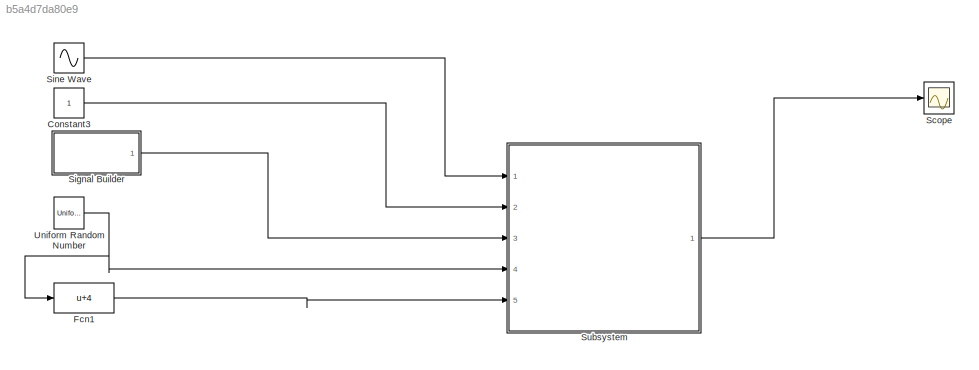
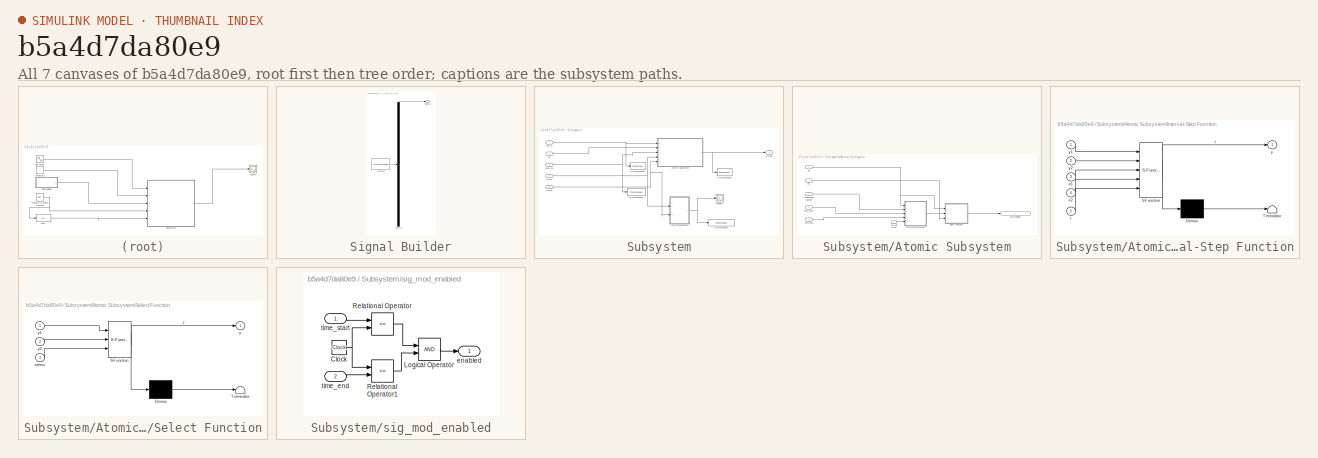
[diagram: thumbnail index - all 7 canvases of the model, root first then tree order]
MODEL slx_b5a4d7da80e9
KIND model
CONFIG AbsTol = auto
CONFIG EnableMultiTasking = off
CONFIG FixedStep = auto
CONFIG MaxStep = auto
CONFIG MinStep = auto
CONFIG RelTol = 1e-3
CONFIG SampleTimeConstraint = Unconstrained
CONFIG Solver = VariableStepAuto
CONFIG SolverName = VariableStepAuto
CONFIG StartTime = 0.0
CONFIG StopTime = 10.0
BLOCK [Constant] Constant3
BLOCK [Fcn] Fcn1
  Expr = u+4
BLOCK [Scope] Scope
  Floating = off
  NumInputPorts = 1
  Ports = [1]
  ScopeSpecificationString = Simulink.scopes.TimeScopeBlockCfg('CurrentConfiguration', extmgr.ConfigurationSet(extmgr.Configuration('Core','General UI',true),extmgr.Configuration('Core','Source UI',true),extmgr.Configuration('Sources','WiredSimulink',true),extmgr.Configuration('Visuals','Time Domain',true,'SerializedDisplays',{struct('MinYLimReal','-1.29138','MaxYLimReal','1.81015','YLabelReal','','MinYLimMag','0.00000','MaxY...<+1384ch>
BLOCK [SubSystem] Signal Builder
  ClipboardFcn = sigbuilder_block('clipboard');
  CloseFcn = sigbuilder_block('close');
  ContinueFcn = sigbuilder_block('continue');
  CopyFcn = sigbuilder_block('copy');
  DeleteFcn = sigbuilder_block('delete');
  LoadFcn = sigbuilder_block('load');
  MaskHideContents = on
  ModelCloseFcn = sigbuilder_block('modelClose');
  NameChangeFcn = sigbuilder_block('namechange');
  OpenFcn = sigbuilder_block('open',[152 61.5 550.5 362.5 ]);
  PauseFcn = sigbuilder_block('pause');
  Ports = [0, 1]
  PreSaveFcn = sigbuilder_block('preSave');
  RequestExecContextInheritance = off
  StartFcn = sigbuilder_block('start');
  StopFcn = sigbuilder_block('stop');
  Tag = STV Subsys
BLOCK [Demux] Signal Builder/Demux
  Outputs = 1
  Ports = [1, 1]
  Tag = STV Demux
BLOCK [FromWorkspace] Signal Builder/FromWs
  SampleTime = 0
  Tag = STV FromWs
  VariableName = tuvar
  ZeroCross = on
BLOCK [Outport] Signal Builder/Signal 1
  IconDisplay = Port number
  Tag = STV Outport
BLOCK [Sin] Sine Wave
  Ports = [0, 1]
  SampleTime = 0
BLOCK [SubSystem] Subsystem
  Ports = [5, 1]
  RequestExecContextInheritance = off
BLOCK [SubSystem] Subsystem/Atomic Subsystem
  Ports = [5, 1]
  RequestExecContextInheritance = off
  TreatAsAtomicUnit = on
BLOCK [Clock] Subsystem/Atomic Subsystem/Clock
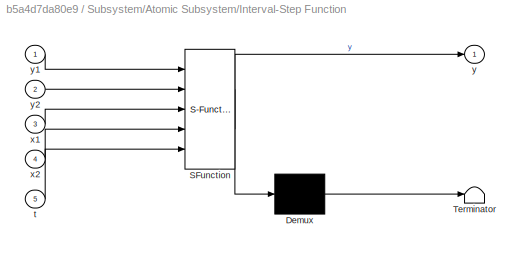
BLOCK [SubSystem] Subsystem/Atomic Subsystem/Interval-Step Function
  ErrorFcn = Stateflow.Translate.translate
  PermitHierarchicalResolution = ExplicitOnly
  Ports = [5, 1]
  RequestExecContextInheritance = off
  SFBlockType = MATLAB Function
  TreatAsAtomicUnit = on
BLOCK [Demux] Subsystem/Atomic Subsystem/Interval-Step Function/ Demux 
  Outputs = 1
  Ports = [1, 1]
BLOCK [S-Function] Subsystem/Atomic Subsystem/Interval-Step Function/ SFunction 
  EnableBusSupport = on
  FunctionName = sf_sfun
  PortCounts = [5 2]
  Ports = [5, 2]
  SFcnIsStateOwnerBlock = off
  SFunctionDeploymentMode = off
  Tag = Stateflow S-Function sig_mod_block_3 1
BLOCK [Terminator] Subsystem/Atomic Subsystem/Interval-Step Function/ Terminator 
BLOCK [Inport] Subsystem/Atomic Subsystem/Interval-Step Function/t
  IconDisplay = Port number
  Port = 5
BLOCK [Inport] Subsystem/Atomic Subsystem/Interval-Step Function/x1
  IconDisplay = Port number
  Port = 3
BLOCK [Inport] Subsystem/Atomic Subsystem/Interval-Step Function/x2
  IconDisplay = Port number
  Port = 4
BLOCK [Outport] Subsystem/Atomic Subsystem/Interval-Step Function/y
  IconDisplay = Port number
BLOCK [Inport] Subsystem/Atomic Subsystem/Interval-Step Function/y1
  IconDisplay = Port number
BLOCK [Inport] Subsystem/Atomic Subsystem/Interval-Step Function/y2
  IconDisplay = Port number
  Port = 2
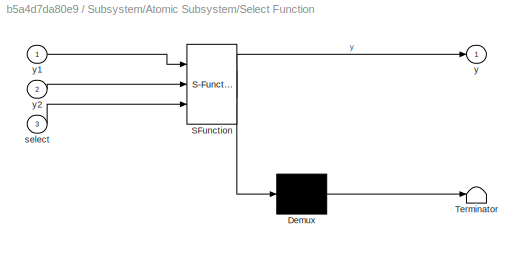
BLOCK [SubSystem] Subsystem/Atomic Subsystem/Select Function
  ErrorFcn = Stateflow.Translate.translate
  PermitHierarchicalResolution = ExplicitOnly
  Ports = [3, 1]
  RequestExecContextInheritance = off
  SFBlockType = MATLAB Function
  TreatAsAtomicUnit = on
BLOCK [Demux] Subsystem/Atomic Subsystem/Select Function/ Demux 
  Outputs = 1
  Ports = [1, 1]
BLOCK [S-Function] Subsystem/Atomic Subsystem/Select Function/ SFunction 
  EnableBusSupport = on
  FunctionName = sf_sfun
  PortCounts = [3 2]
  Ports = [3, 2]
  SFcnIsStateOwnerBlock = off
  SFunctionDeploymentMode = off
  Tag = Stateflow S-Function sig_mod_block_3 4
BLOCK [Terminator] Subsystem/Atomic Subsystem/Select Function/ Terminator 
BLOCK [Inport] Subsystem/Atomic Subsystem/Select Function/select
  IconDisplay = Port number
  Port = 3
BLOCK [Outport] Subsystem/Atomic Subsystem/Select Function/y
  IconDisplay = Port number
BLOCK [Inport] Subsystem/Atomic Subsystem/Select Function/y1
  IconDisplay = Port number
BLOCK [Inport] Subsystem/Atomic Subsystem/Select Function/y2
  IconDisplay = Port number
  Port = 2
BLOCK [Inport] Subsystem/Atomic Subsystem/en
  IconDisplay = Port number
  Port = 2
BLOCK [Inport] Subsystem/Atomic Subsystem/modification function
  IconDisplay = Port number
  Port = 3
BLOCK [Inport] Subsystem/Atomic Subsystem/sig
  IconDisplay = Port number
BLOCK [Outport] Subsystem/Atomic Subsystem/sig_modified
  IconDisplay = Port number
BLOCK [Inport] Subsystem/Atomic Subsystem/time_end
  IconDisplay = Port number
  Port = 5
BLOCK [Inport] Subsystem/Atomic Subsystem/time_start
  IconDisplay = Port number
  Port = 4
BLOCK [Scope] Subsystem/Scope1
  Floating = off
  NumInputPorts = 1
  Ports = [1]
  ScopeSpecificationString = Simulink.scopes.TimeScopeBlockCfg('CurrentConfiguration', extmgr.ConfigurationSet(extmgr.Configuration('Core','General UI',true),extmgr.Configuration('Core','Source UI',true),extmgr.Configuration('Sources','WiredSimulink',true,'DataLoggingVariableName','ScopeData1'),extmgr.Configuration('Visuals','Time Domain',true),extmgr.Configuration('Tools','Plot Navigation',true),extmgr.Configuration('Tools',...<+40ch>
BLOCK [ToWorkspace] Subsystem/To Workspace
  FixptAsFi = on
  MaxDataPoints = inf
  Ports = [1]
  SampleTime = -1
  SaveFormat = Timeseries
  VariableName = sig_mod_enabled
BLOCK [ToWorkspace] Subsystem/To Workspace1
  FixptAsFi = on
  MaxDataPoints = inf
  Ports = [1]
  SampleTime = -1
  SaveFormat = Timeseries
  VariableName = signal
BLOCK [ToWorkspace] Subsystem/To Workspace2
  FixptAsFi = on
  MaxDataPoints = inf
  Ports = [1]
  SampleTime = -1
  SaveFormat = Timeseries
  VariableName = modification_sig
BLOCK [ToWorkspace] Subsystem/To Workspace3
  FixptAsFi = on
  MaxDataPoints = inf
  Ports = [1]
  SampleTime = -1
  SaveFormat = Timeseries
  VariableName = modified_sig
BLOCK [Inport] Subsystem/en
  IconDisplay = Port number
  Port = 2
BLOCK [Inport] Subsystem/mod_fcn
  IconDisplay = Port number
  Port = 3
BLOCK [Inport] Subsystem/sig_in
  IconDisplay = Port number
BLOCK [SubSystem] Subsystem/sig_mod_enabled
  Ports = [2, 1]
  RequestExecContextInheritance = off
BLOCK [Clock] Subsystem/sig_mod_enabled/Clock
BLOCK [Logic] Subsystem/sig_mod_enabled/Logical Operator
  AllPortsSameDT = off
  OutDataTypeStr = boolean
  Ports = [2, 1]
BLOCK [RelationalOperator] Subsystem/sig_mod_enabled/Relational Operator
  InputSameDT = off
  Operator = <=
  OutDataTypeStr = boolean
  Ports = [2, 1]
  RndMeth = Simplest
BLOCK [RelationalOperator] Subsystem/sig_mod_enabled/Relational Operator1
  InputSameDT = off
  Operator = <=
  OutDataTypeStr = boolean
  Ports = [2, 1]
  RndMeth = Simplest
BLOCK [Outport] Subsystem/sig_mod_enabled/enabled
  IconDisplay = Port number
BLOCK [Inport] Subsystem/sig_mod_enabled/time_end
  IconDisplay = Port number
  Port = 2
BLOCK [Inport] Subsystem/sig_mod_enabled/time_start
  IconDisplay = Port number
BLOCK [Outport] Subsystem/sig_out
  IconDisplay = Port number
BLOCK [Inport] Subsystem/time1
  IconDisplay = Port number
  Port = 4
BLOCK [Inport] Subsystem/time2
  IconDisplay = Port number
  Port = 5
BLOCK [UniformRandomNumber] Uniform Random Number
  Maximum = 6
  Minimum = 0
  SampleTime = 0.1
  Seed = randi(intmax)
LINE Constant3:1 -> Subsystem:2
LINE Fcn1:1 -> Subsystem:5
LINE Signal Builder:1 -> Subsystem:3
LINE Sine Wave:1 -> Subsystem:1
LINE Subsystem/Atomic Subsystem/Clock:1 -> Subsystem/Atomic Subsystem/Interval-Step Function:5
LINE Subsystem/Atomic Subsystem/Interval-Step Function:1 -> Subsystem/Atomic Subsystem/Select Function:2
LINE Subsystem/Atomic Subsystem/Select Function:1 -> Subsystem/Atomic Subsystem/sig_modified:1
LINE Subsystem/Atomic Subsystem/en:1 -> Subsystem/Atomic Subsystem/Select Function:3
LINE Subsystem/Atomic Subsystem/modification function:1 -> Subsystem/Atomic Subsystem/Interval-Step Function:2
NET Subsystem/Atomic Subsystem/sig:1 -> Subsystem/Atomic Subsystem/Interval-Step Function:1, Subsystem/Atomic Subsystem/Select Function:1
LINE Subsystem/Atomic Subsystem/time_end:1 -> Subsystem/Atomic Subsystem/Interval-Step Function:4
LINE Subsystem/Atomic Subsystem/time_start:1 -> Subsystem/Atomic Subsystem/Interval-Step Function:3
NET Subsystem/Atomic Subsystem:1 -> Subsystem/To Workspace3:1, Subsystem/sig_out:1
LINE Subsystem/en:1 -> Subsystem/Atomic Subsystem:2
NET Subsystem/mod_fcn:1 -> Subsystem/Atomic Subsystem:3, Subsystem/To Workspace2:1
NET Subsystem/sig_in:1 -> Subsystem/Atomic Subsystem:1, Subsystem/To Workspace1:1
NET Subsystem/sig_mod_enabled/Clock:1 -> Subsystem/sig_mod_enabled/Relational Operator1:1, Subsystem/sig_mod_enabled/Relational Operator:2
LINE Subsystem/sig_mod_enabled/Logical Operator:1 -> Subsystem/sig_mod_enabled/enabled:1
LINE Subsystem/sig_mod_enabled/Relational Operator1:1 -> Subsystem/sig_mod_enabled/Logical Operator:2
LINE Subsystem/sig_mod_enabled/Relational Operator:1 -> Subsystem/sig_mod_enabled/Logical Operator:1
LINE Subsystem/sig_mod_enabled/time_end:1 -> Subsystem/sig_mod_enabled/Relational Operator1:2
LINE Subsystem/sig_mod_enabled/time_start:1 -> Subsystem/sig_mod_enabled/Relational Operator:1
NET Subsystem/sig_mod_enabled:1 -> Subsystem/Scope1:1, Subsystem/To Workspace:1
NET Subsystem/time1:1 -> Subsystem/Atomic Subsystem:4, Subsystem/sig_mod_enabled:1
NET Subsystem/time2:1 -> Subsystem/Atomic Subsystem:5, Subsystem/sig_mod_enabled:2
LINE Subsystem:1 -> Scope:1
NET Uniform Random Number:1 -> Fcn1:1, Subsystem:4
note: NET lines group one-source signal fan-out (src -> all destinations, sorted); 1:1 wires keep LINE
CHART Subsystem/Atomic Subsystem/Interval-Step Function states=1 transitions=1
  STATE_LABEL 'eML_blk_kernel()'
  STATE_LABEL 'SCRIPT:\nfunction y = fcn(y1,y2,x1,x2,t)\n\nif (x1<=t)&&(t<x2)\n    y=y2;\nelse\n    y=y1;\nend\n'
CHART Subsystem/Atomic Subsystem/Select Function states=1 transitions=1
  STATE_LABEL 'eML_blk_kernel()'
  STATE_LABEL 'SCRIPT:\nfunction y = fcn(y1,y2,select)\n\nif select>=1\n    y=y2;\nelse\n    y=y1;\nend'
